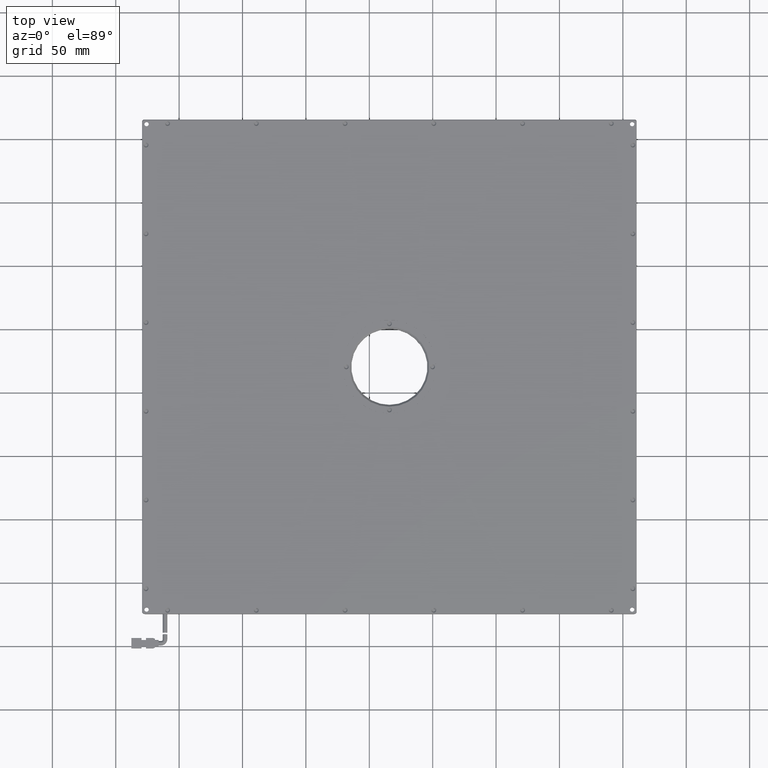
[diagram: clean part render]
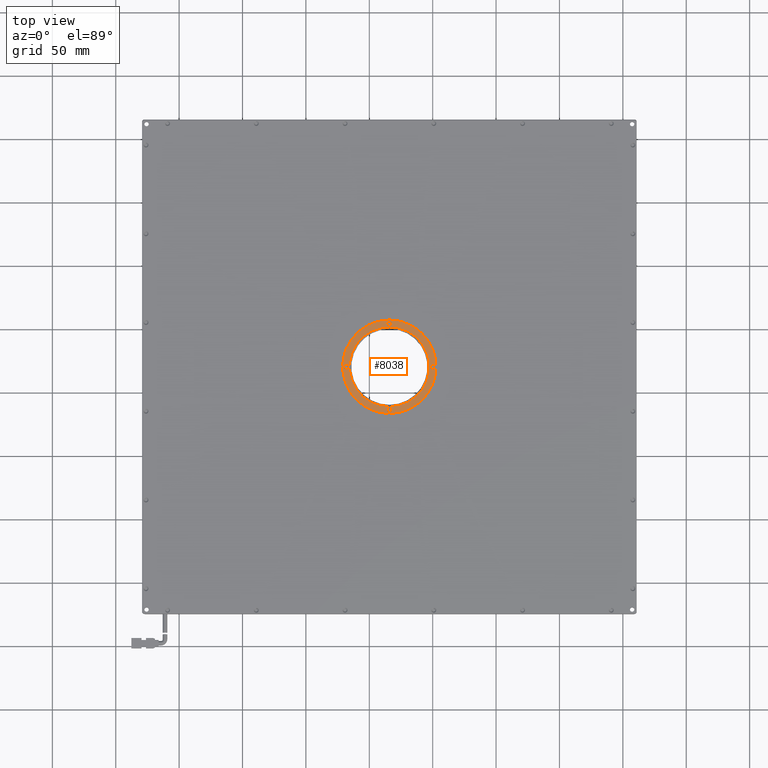
[diagram: same view with one face highlighted and labeled with its STEP entity id]
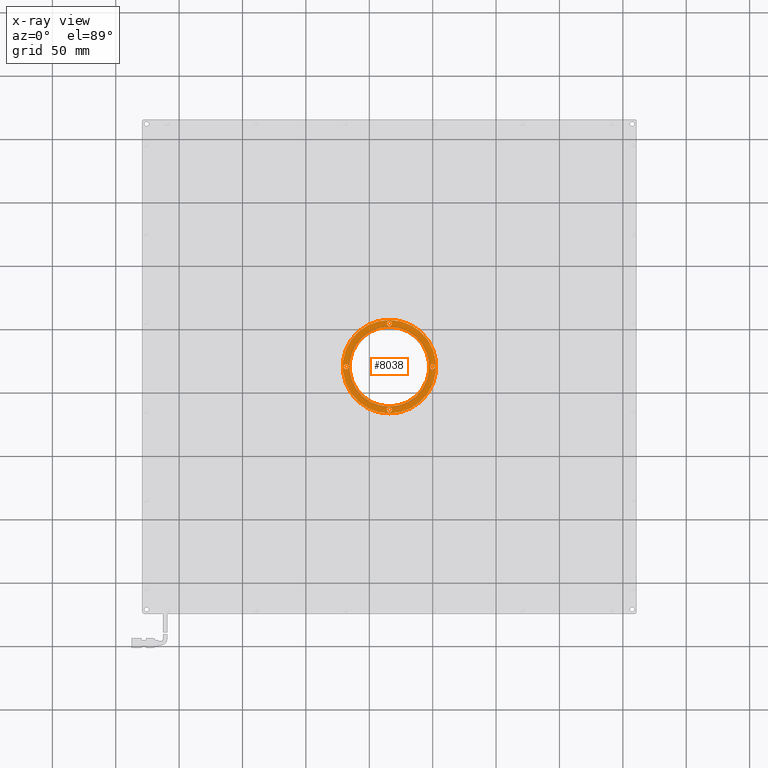
[diagram: x-ray of the same camera — body ghosted, the highlighted face saturated]
A machine part, top view. The second image highlights one B-rep face of the part: STEP entity #8038.
The next image is the same camera in x-ray: the body ghosted, the highlighted face saturated — about 0% of this face is hidden behind the body in this view.
In plain terms, the highlighted planar face has unit normal (0, 0, -1).
Its self-contained STEP definition (entity closure, byte-faithful):
#224 = VERTEX_POINT ( 'NONE', #11894 ) ;
#329 = FACE_BOUND ( 'NONE', #6090, .T. ) ;
#377 = DIRECTION ( 'NONE',  ( 1.000000000000000000, 0.0000000000000000000, 0.0000000000000000000 ) ) ;
#519 = DIRECTION ( 'NONE',  ( 0.0000000000000000000, 0.0000000000000000000, 1.000000000000000000 ) ) ;
#684 = AXIS2_PLACEMENT_3D ( 'NONE', #6361, #9625, #8002 ) ;
#974 = CARTESIAN_POINT ( 'NONE',  ( -32.14840179853786100, -13.57702702702795100, 8.249999999923947100 ) ) ;
#1069 = VERTEX_POINT ( 'NONE', #3292 ) ;
#1077 = CIRCLE ( 'NONE', #16144, 2.000000000074581200 ) ;
#1124 = FACE_BOUND ( 'NONE', #17101, .T. ) ;
#1252 = VERTEX_POINT ( 'NONE', #974 ) ;
#1444 = PLANE ( 'NONE',  #684 ) ;
#1547 = ORIENTED_EDGE ( 'NONE', *, *, #15270, .F. ) ;
#1807 = AXIS2_PLACEMENT_3D ( 'NONE', #9475, #5927, #2581 ) ;
#1946 = EDGE_LOOP ( 'NONE', ( #4717, #12546 ) ) ;
#2045 = DIRECTION ( 'NONE',  ( 0.0000000000000000000, 0.0000000000000000000, 1.000000000000000000 ) ) ;
#2119 = VERTEX_POINT ( 'NONE', #21787 ) ;
#2275 = VERTEX_POINT ( 'NONE', #15421 ) ;
#2370 = CIRCLE ( 'NONE', #7357, 2.000000000001361600 ) ;
#2581 = DIRECTION ( 'NONE',  ( 1.000000000000000000, 0.0000000000000000000, 0.0000000000000000000 ) ) ;
#2794 = DIRECTION ( 'NONE',  ( 1.000000000000000000, 0.0000000000000000000, 0.0000000000000000000 ) ) ;
#3195 = CARTESIAN_POINT ( 'NONE',  ( -34.14840179853886300, 51.92297297297203300, 8.250000000000003600 ) ) ;
#3292 = CARTESIAN_POINT ( 'NONE',  ( -34.14840179853886300, -16.47702702702795800, 8.249999999999996400 ) ) ;
#3678 = EDGE_CURVE ( 'NONE', #6570, #21890, #13618, .T. ) ;
#3918 = EDGE_LOOP ( 'NONE', ( #8445, #4734 ) ) ;
#4196 = VERTEX_POINT ( 'NONE', #6157 ) ;
#4281 = CARTESIAN_POINT ( 'NONE',  ( -34.14840179853875000, 54.42297297297204800, 8.250000000037633900 ) ) ;
#4650 = DIRECTION ( 'NONE',  ( 2.168404345083914800E-016, 0.0000000000000000000, 1.000000000000000000 ) ) ;
#4717 = ORIENTED_EDGE ( 'NONE', *, *, #17180, .F. ) ;
#4734 = ORIENTED_EDGE ( 'NONE', *, *, #17272, .F. ) ;
#4775 = DIRECTION ( 'NONE',  ( 2.168404345083914800E-016, 0.0000000000000000000, 1.000000000000000000 ) ) ;
#4796 = AXIS2_PLACEMENT_3D ( 'NONE', #8723, #2045, #10369 ) ;
#4921 = ORIENTED_EDGE ( 'NONE', *, *, #9419, .F. ) ;
#5033 = CIRCLE ( 'NONE', #1807, 2.000000000001361600 ) ;
#5468 = DIRECTION ( 'NONE',  ( 1.000000000000000000, 0.0000000000000000000, 0.0000000000000000000 ) ) ;
#5664 = CIRCLE ( 'NONE', #16254, 36.90000000000001300 ) ;
#5724 = DIRECTION ( 'NONE',  ( 1.000000000000000000, 0.0000000000000000000, 0.0000000000000000000 ) ) ;
#5927 = DIRECTION ( 'NONE',  ( 2.168404344969532500E-016, 0.0000000000000000000, 1.000000000000000000 ) ) ;
#6090 = EDGE_LOOP ( 'NONE', ( #17354, #15650 ) ) ;
#6157 = CARTESIAN_POINT ( 'NONE',  ( -36.14840179861333500, 54.42297297297204800, 8.250000000037633900 ) ) ;
#6176 = CIRCLE ( 'NONE', #11277, 1.999999999952706300 ) ;
#6325 = AXIS2_PLACEMENT_3D ( 'NONE', #9981, #4775, #13281 ) ;
#6361 = CARTESIAN_POINT ( 'NONE',  ( -4.148401798538859700, 20.42297297297205100, 8.250000000000000000 ) ) ;
#6458 = AXIS2_PLACEMENT_3D ( 'NONE', #15863, #8923, #5724 ) ;
#6570 = VERTEX_POINT ( 'NONE', #6919 ) ;
#6622 = CARTESIAN_POINT ( 'NONE',  ( -34.14840179853887000, -11.07702702702793500, 8.250000000000003600 ) ) ;
#6919 = CARTESIAN_POINT ( 'NONE',  ( -2.148401798491573100, 20.42297297297205100, 8.249999999980790500 ) ) ;
#7248 = FACE_BOUND ( 'NONE', #3918, .T. ) ;
#7306 = CARTESIAN_POINT ( 'NONE',  ( -34.14840179853887000, 20.42297297297205100, 8.250000000000003600 ) ) ;
#7357 = AXIS2_PLACEMENT_3D ( 'NONE', #14189, #12311, #377 ) ;
#7789 = ORIENTED_EDGE ( 'NONE', *, *, #7825, .F. ) ;
#7825 = EDGE_CURVE ( 'NONE', #224, #1069, #5664, .T. ) ;
#7951 = DIRECTION ( 'NONE',  ( 1.000000000000000000, 0.0000000000000000000, 0.0000000000000000000 ) ) ;
#8002 = DIRECTION ( 'NONE',  ( 0.0000000000000000000, 1.000000000000000000, 0.0000000000000000000 ) ) ;
#8038 = ADVANCED_FACE ( 'NONE', ( #9102, #7248, #10174, #1124, #329, #8850 ), #1444, .F. ) ;
#8445 = ORIENTED_EDGE ( 'NONE', *, *, #17035, .F. ) ;
#8723 = CARTESIAN_POINT ( 'NONE',  ( -34.14840179853887000, 20.42297297297205100, 8.250000000000003600 ) ) ;
#8850 = FACE_BOUND ( 'NONE', #1946, .T. ) ;
#8860 = CARTESIAN_POINT ( 'NONE',  ( -36.14840179854058300, -13.57702702702795100, 8.249999999923947100 ) ) ;
#8923 = DIRECTION ( 'NONE',  ( 2.168404345083914800E-016, 0.0000000000000000000, 1.000000000000000000 ) ) ;
#9102 = FACE_OUTER_BOUND ( 'NONE', #9668, .T. ) ;
#9122 = CIRCLE ( 'NONE', #6458, 1.999999999952706300 ) ;
#9419 = EDGE_CURVE ( 'NONE', #4196, #2275, #21368, .T. ) ;
#9475 = CARTESIAN_POINT ( 'NONE',  ( -34.14840179853922600, -13.57702702702795100, 8.249999999923947100 ) ) ;
#9625 = DIRECTION ( 'NONE',  ( 0.0000000000000000000, 0.0000000000000000000, -1.000000000000000000 ) ) ;
#9668 = EDGE_LOOP ( 'NONE', ( #7789, #11702 ) ) ;
#9816 = EDGE_CURVE ( 'NONE', #1069, #224, #16566, .T. ) ;
#9981 = CARTESIAN_POINT ( 'NONE',  ( -0.1484017985388663700, 20.42297297297205100, 8.249999999980790500 ) ) ;
#10068 = ORIENTED_EDGE ( 'NONE', *, *, #14739, .F. ) ;
#10174 = FACE_BOUND ( 'NONE', #20452, .T. ) ;
#10369 = DIRECTION ( 'NONE',  ( 0.0000000000000000000, -1.000000000000000000, 0.0000000000000000000 ) ) ;
#10445 = CARTESIAN_POINT ( 'NONE',  ( -34.14840179853887000, 20.42297297297205100, 8.249999999999996400 ) ) ;
#10593 = CIRCLE ( 'NONE', #4796, 31.49999999999998600 ) ;
#10625 = CARTESIAN_POINT ( 'NONE',  ( -70.14840179849157700, 20.42297297297205100, 8.249999999980790500 ) ) ;
#10659 = CARTESIAN_POINT ( 'NONE',  ( 1.851598201413839500, 20.42297297297205100, 8.249999999980790500 ) ) ;
#10973 = CIRCLE ( 'NONE', #6325, 1.999999999952706300 ) ;
#11277 = AXIS2_PLACEMENT_3D ( 'NONE', #21462, #4650, #2794 ) ;
#11702 = ORIENTED_EDGE ( 'NONE', *, *, #9816, .F. ) ;
#11725 = AXIS2_PLACEMENT_3D ( 'NONE', #4281, #12695, #19719 ) ;
#11894 = CARTESIAN_POINT ( 'NONE',  ( -34.14840179853887000, 57.32297297297206700, 8.249999999999996400 ) ) ;
#12311 = DIRECTION ( 'NONE',  ( 2.168404344969532500E-016, 0.0000000000000000000, 1.000000000000000000 ) ) ;
#12456 = DIRECTION ( 'NONE',  ( 0.0000000000000000000, -1.000000000000000000, 0.0000000000000000000 ) ) ;
#12546 = ORIENTED_EDGE ( 'NONE', *, *, #16579, .F. ) ;
#12629 = DIRECTION ( 'NONE',  ( 2.168404344828519100E-016, 0.0000000000000000000, 1.000000000000000000 ) ) ;
#12695 = DIRECTION ( 'NONE',  ( 2.168404344828519100E-016, 0.0000000000000000000, 1.000000000000000000 ) ) ;
#12841 = ORIENTED_EDGE ( 'NONE', *, *, #14017, .F. ) ;
#12948 = DIRECTION ( 'NONE',  ( 2.168404345083914800E-016, 0.0000000000000000000, 1.000000000000000000 ) ) ;
#13281 = DIRECTION ( 'NONE',  ( 1.000000000000000000, 0.0000000000000000000, 0.0000000000000000000 ) ) ;
#13547 = CIRCLE ( 'NONE', #17662, 31.49999999999998600 ) ;
#13618 = CIRCLE ( 'NONE', #14803, 1.999999999952706300 ) ;
#14017 = EDGE_CURVE ( 'NONE', #2119, #17667, #6176, .T. ) ;
#14140 = CARTESIAN_POINT ( 'NONE',  ( -34.14840179853887000, 20.42297297297205100, 8.249999999999996400 ) ) ;
#14189 = CARTESIAN_POINT ( 'NONE',  ( -34.14840179853922600, -13.57702702702795100, 8.249999999923947100 ) ) ;
#14441 = CARTESIAN_POINT ( 'NONE',  ( -0.1484017985388663700, 20.42297297297205100, 8.249999999980790500 ) ) ;
#14739 = EDGE_CURVE ( 'NONE', #2275, #4196, #1077, .T. ) ;
#14803 = AXIS2_PLACEMENT_3D ( 'NONE', #14441, #12948, #7951 ) ;
#15270 = EDGE_CURVE ( 'NONE', #17667, #2119, #9122, .T. ) ;
#15421 = CARTESIAN_POINT ( 'NONE',  ( -32.14840179846417100, 54.42297297297204800, 8.250000000037633900 ) ) ;
#15650 = ORIENTED_EDGE ( 'NONE', *, *, #3678, .F. ) ;
#15723 = EDGE_CURVE ( 'NONE', #21890, #6570, #10973, .T. ) ;
#15863 = CARTESIAN_POINT ( 'NONE',  ( -68.14840179853887000, 20.42297297297205100, 8.249999999980790500 ) ) ;
#15899 = DIRECTION ( 'NONE',  ( 0.0000000000000000000, 0.0000000000000000000, -1.000000000000000000 ) ) ;
#16144 = AXIS2_PLACEMENT_3D ( 'NONE', #20962, #12629, #5468 ) ;
#16254 = AXIS2_PLACEMENT_3D ( 'NONE', #14140, #15899, #21028 ) ;
#16462 = AXIS2_PLACEMENT_3D ( 'NONE', #10445, #20790, #17241 ) ;
#16566 = CIRCLE ( 'NONE', #16462, 36.90000000000001300 ) ;
#16579 = EDGE_CURVE ( 'NONE', #18207, #1252, #5033, .T. ) ;
#17035 = EDGE_CURVE ( 'NONE', #18612, #18647, #10593, .T. ) ;
#17101 = EDGE_LOOP ( 'NONE', ( #10068, #4921 ) ) ;
#17180 = EDGE_CURVE ( 'NONE', #1252, #18207, #2370, .T. ) ;
#17241 = DIRECTION ( 'NONE',  ( 0.0000000000000000000, 1.000000000000000000, 0.0000000000000000000 ) ) ;
#17272 = EDGE_CURVE ( 'NONE', #18647, #18612, #13547, .T. ) ;
#17354 = ORIENTED_EDGE ( 'NONE', *, *, #15723, .F. ) ;
#17662 = AXIS2_PLACEMENT_3D ( 'NONE', #7306, #519, #12456 ) ;
#17667 = VERTEX_POINT ( 'NONE', #10625 ) ;
#18207 = VERTEX_POINT ( 'NONE', #8860 ) ;
#18612 = VERTEX_POINT ( 'NONE', #6622 ) ;
#18647 = VERTEX_POINT ( 'NONE', #3195 ) ;
#19719 = DIRECTION ( 'NONE',  ( 1.000000000000000000, 0.0000000000000000000, 0.0000000000000000000 ) ) ;
#20452 = EDGE_LOOP ( 'NONE', ( #12841, #1547 ) ) ;
#20790 = DIRECTION ( 'NONE',  ( 0.0000000000000000000, 0.0000000000000000000, -1.000000000000000000 ) ) ;
#20962 = CARTESIAN_POINT ( 'NONE',  ( -34.14840179853875000, 54.42297297297204800, 8.250000000037633900 ) ) ;
#21028 = DIRECTION ( 'NONE',  ( 0.0000000000000000000, 1.000000000000000000, 0.0000000000000000000 ) ) ;
#21368 = CIRCLE ( 'NONE', #11725, 2.000000000074581200 ) ;
#21462 = CARTESIAN_POINT ( 'NONE',  ( -68.14840179853887000, 20.42297297297205100, 8.249999999980790500 ) ) ;
#21787 = CARTESIAN_POINT ( 'NONE',  ( -66.14840179858616400, 20.42297297297205100, 8.249999999980790500 ) ) ;
#21890 = VERTEX_POINT ( 'NONE', #10659 ) ;